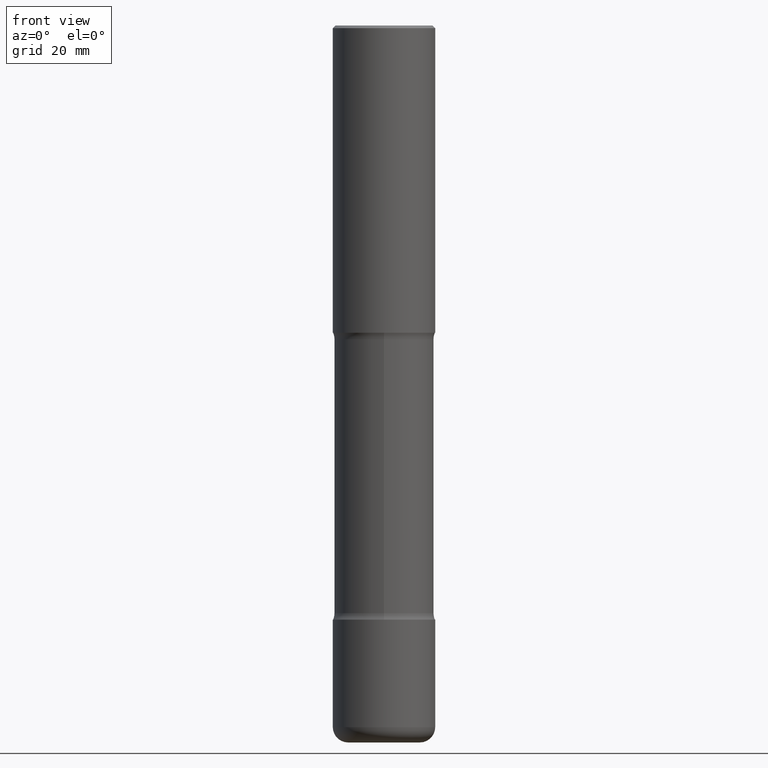
[diagram: clean part render]
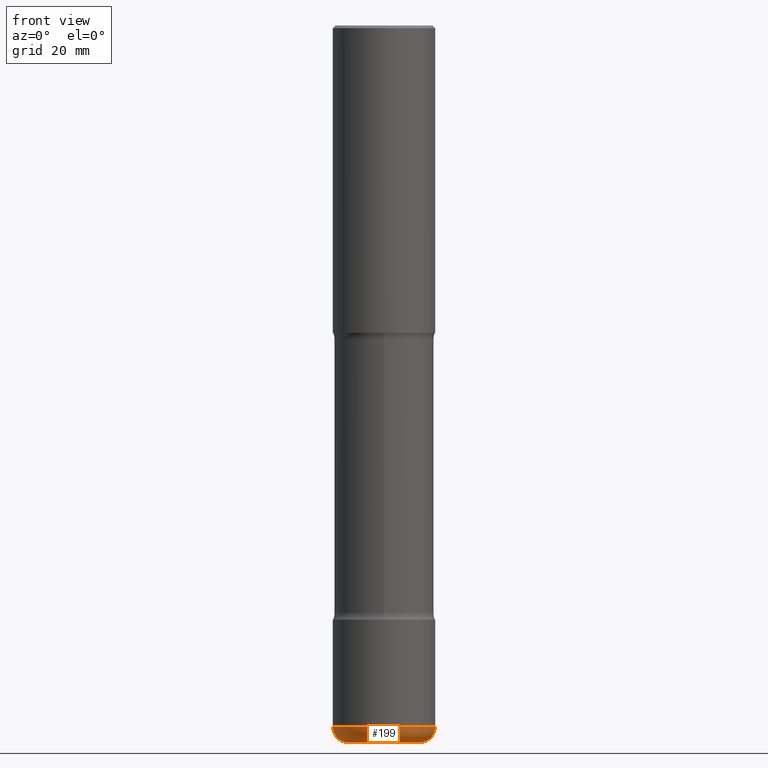
[diagram: same view with one face highlighted and labeled with its STEP entity id]
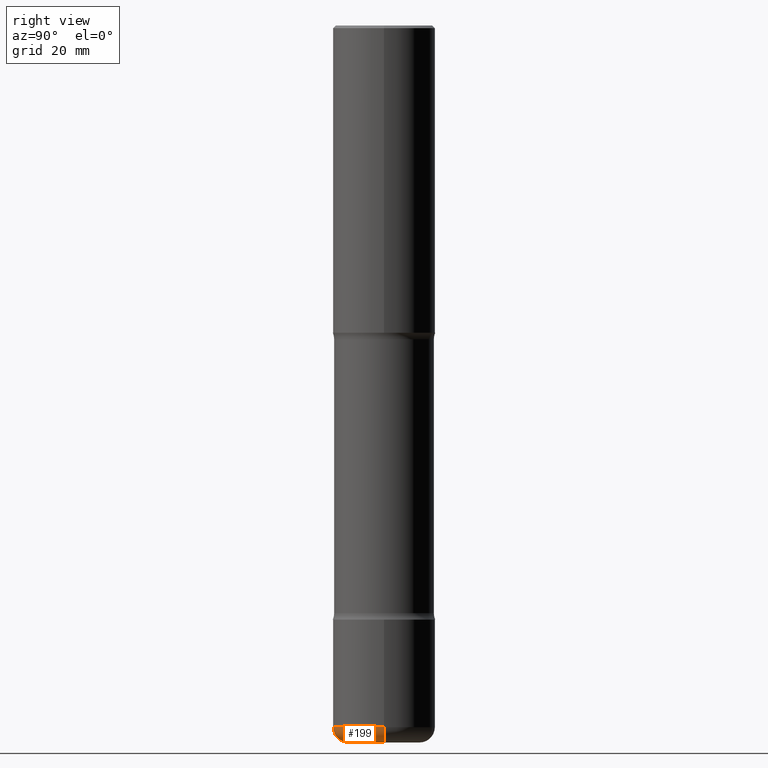
[diagram: same view with one face highlighted and labeled with its STEP entity id]
A machine part, front view. The second image highlights one B-rep face of the part: STEP entity #199.
A second angle (right view) of the same face is appended — the face is thin or edge-on in the first view.
In plain terms, the highlighted toroidal blend (fillet) surface has major radius 7.0002 mm and minor (blend) radius 2.9997 mm.
Its self-contained STEP definition (entity closure, byte-faithful):
#4 = EDGE_CURVE ( 'NONE', #523, #367, #243, .T. ) ;
#6 = AXIS2_PLACEMENT_3D ( 'NONE', #218, #395, #339 ) ;
#7 = AXIS2_PLACEMENT_3D ( 'NONE', #377, #38, #343 ) ;
#38 = DIRECTION ( 'NONE',  ( 7.105427357601001859E-15, 1.000000000000000000, -3.491481338843145583E-15 ) ) ;
#51 = TOROIDAL_SURFACE ( 'NONE', #314, 0.2756000000000004557, 0.1180999999999994832 ) ;
#57 = CARTESIAN_POINT ( 'NONE',  ( 0.2756000000000004557, -2.075650741128861749E-14, -5.393700000000000827 ) ) ;
#64 = DIRECTION ( 'NONE',  ( 1.000000000000000000, -6.982962677686269866E-15, 0.000000000000000000 ) ) ;
#74 = CARTESIAN_POINT ( 'NONE',  ( 0.3937000000000002164, -2.158119530352336260E-14, -5.393700000000000827 ) ) ;
#77 = DIRECTION ( 'NONE',  ( 1.000000000000000000, -6.982962677686269077E-15, 4.883557194083114022E-29 ) ) ;
#88 = CARTESIAN_POINT ( 'NONE',  ( 1.319012509992077371E-28, -1.883200289731827938E-14, -5.393700000000000827 ) ) ;
#95 = CARTESIAN_POINT ( 'NONE',  ( 1.319012509992077371E-28, -1.883200289731827938E-14, -5.393700000000000827 ) ) ;
#112 = VERTEX_POINT ( 'NONE', #74 ) ;
#135 = DIRECTION ( 'NONE',  ( -2.445468806185136597E-29, 3.491481338843145583E-15, 1.000000000000000000 ) ) ;
#170 = VERTEX_POINT ( 'NONE', #196 ) ;
#173 = EDGE_LOOP ( 'NONE', ( #292, #553, #176, #467 ) ) ;
#176 = ORIENTED_EDGE ( 'NONE', *, *, #430, .T. ) ;
#196 = CARTESIAN_POINT ( 'NONE',  ( -0.3937000000000002164, -1.603459614663076223E-14, -5.393700000000000827 ) ) ;
#199 = ADVANCED_FACE ( 'NONE', ( #381 ), #51, .T. ) ;
#208 = AXIS2_PLACEMENT_3D ( 'NONE', #57, #226, #403 ) ;
#215 = CIRCLE ( 'NONE', #537, 0.3937000000000004940 ) ;
#218 = CARTESIAN_POINT ( 'NONE',  ( 1.347893496593123646E-28, -1.924434684343564878E-14, -5.511800000000000033 ) ) ;
#226 = DIRECTION ( 'NONE',  ( -6.982962677686266711E-15, -1.000000000000000000, 3.491481338843145583E-15 ) ) ;
#233 = CARTESIAN_POINT ( 'NONE',  ( 0.2756000000000004557, -2.116885135740598689E-14, -5.511800000000000033 ) ) ;
#243 = CIRCLE ( 'NONE', #6, 0.2756000000000004557 ) ;
#245 = EDGE_CURVE ( 'NONE', #523, #170, #297, .T. ) ;
#292 = ORIENTED_EDGE ( 'NONE', *, *, #245, .F. ) ;
#297 = CIRCLE ( 'NONE', #7, 0.1180999999999994832 ) ;
#301 = CARTESIAN_POINT ( 'NONE',  ( -0.2756000000000004557, -1.666034360515578958E-14, -5.511800000000000033 ) ) ;
#314 = AXIS2_PLACEMENT_3D ( 'NONE', #88, #466, #77 ) ;
#315 = EDGE_CURVE ( 'NONE', #170, #112, #215, .T. ) ;
#339 = DIRECTION ( 'NONE',  ( 1.000000000000000000, -6.982962677686269077E-15, 0.000000000000000000 ) ) ;
#343 = DIRECTION ( 'NONE',  ( -1.000000000000000000, 7.105427357601001859E-15, 0.000000000000000000 ) ) ;
#367 = VERTEX_POINT ( 'NONE', #233 ) ;
#377 = CARTESIAN_POINT ( 'NONE',  ( -0.2756000000000004557, -1.687374711756343806E-14, -5.393700000000000827 ) ) ;
#381 = FACE_OUTER_BOUND ( 'NONE', #173, .T. ) ;
#395 = DIRECTION ( 'NONE',  ( -2.445468806185136597E-29, 3.491481338843145583E-15, 1.000000000000000000 ) ) ;
#403 = DIRECTION ( 'NONE',  ( 1.000000000000000000, -6.982962677686270655E-15, 0.000000000000000000 ) ) ;
#430 = EDGE_CURVE ( 'NONE', #367, #112, #528, .T. ) ;
#466 = DIRECTION ( 'NONE',  ( -2.445468806185136597E-29, 3.491481338843145583E-15, 1.000000000000000000 ) ) ;
#467 = ORIENTED_EDGE ( 'NONE', *, *, #315, .F. ) ;
#523 = VERTEX_POINT ( 'NONE', #301 ) ;
#528 = CIRCLE ( 'NONE', #208, 0.1180999999999994832 ) ;
#537 = AXIS2_PLACEMENT_3D ( 'NONE', #95, #135, #64 ) ;
#553 = ORIENTED_EDGE ( 'NONE', *, *, #4, .T. ) ;